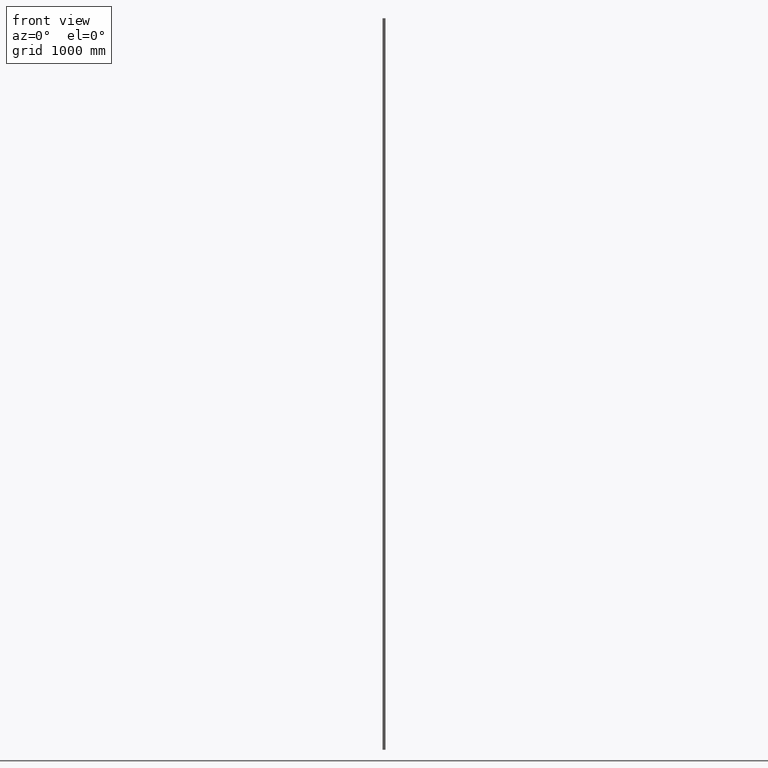
[diagram: clean part render]
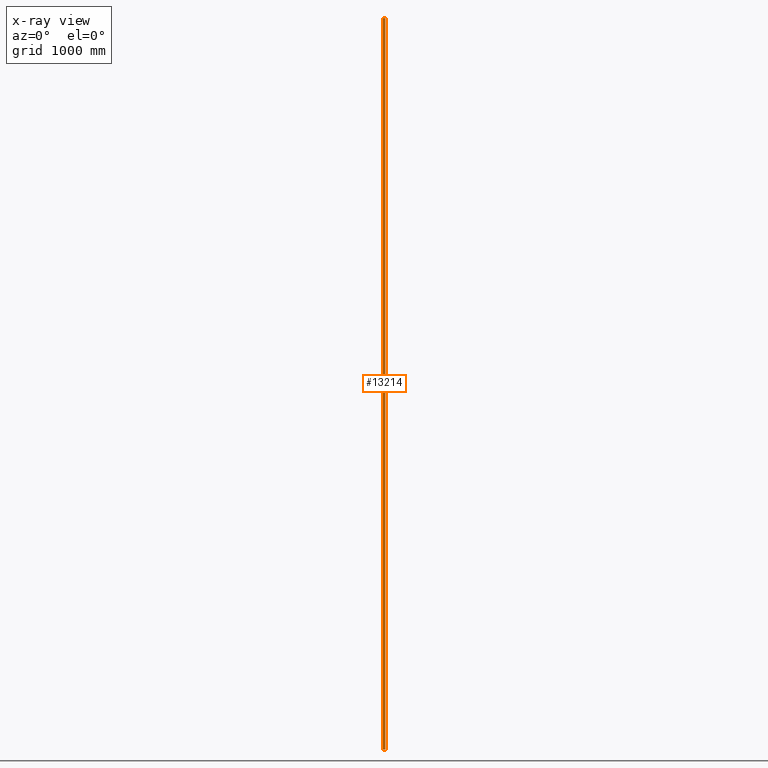
[diagram: x-ray — body ghosted, one internal face saturated and labeled with its STEP entity id]
A machine part, front view, then the same camera in x-ray: the body is ghosted and one INTERNAL B-rep face — a face not visible from any outside direction — is saturated and labeled: STEP entity #13214.
In plain terms, the highlighted planar face has unit normal (-0, 1, 0).
Its self-contained STEP definition (entity closure, byte-faithful):
#605 = PLANE ( 'NONE',  #2508 ) ;
#907 = CARTESIAN_POINT ( 'NONE',  ( 9.999999999999998200, 12.00000000000000200, -3000.000000000000000 ) ) ;
#2120 = LINE ( 'NONE', #9874, #5303 ) ;
#2134 = CARTESIAN_POINT ( 'NONE',  ( 9.999999999999998200, 12.00000000000000200, 3000.000000000000000 ) ) ;
#2508 = AXIS2_PLACEMENT_3D ( 'NONE', #11284, #2943, #2998 ) ;
#2650 = EDGE_CURVE ( 'NONE', #10500, #3262, #13626, .T. ) ;
#2748 = DIRECTION ( 'NONE',  ( -0.0000000000000000000, -0.0000000000000000000, -1.000000000000000000 ) ) ;
#2830 = VECTOR ( 'NONE', #15590, 1000.000000000000000 ) ;
#2943 = DIRECTION ( 'NONE',  ( -8.673617379884035500E-017, 1.000000000000000000, 0.0000000000000000000 ) ) ;
#2998 = DIRECTION ( 'NONE',  ( -1.000000000000000000, -8.673617379884035500E-017, 0.0000000000000000000 ) ) ;
#3262 = VERTEX_POINT ( 'NONE', #907 ) ;
#3308 = DIRECTION ( 'NONE',  ( -0.0000000000000000000, -0.0000000000000000000, -1.000000000000000000 ) ) ;
#3506 = EDGE_LOOP ( 'NONE', ( #8588, #14646, #12254, #12138 ) ) ;
#3564 = CARTESIAN_POINT ( 'NONE',  ( 9.999999999999998200, 12.00000000000000200, 3000.000000000000000 ) ) ;
#4792 = EDGE_CURVE ( 'NONE', #14251, #10500, #2120, .T. ) ;
#5178 = VERTEX_POINT ( 'NONE', #3564 ) ;
#5303 = VECTOR ( 'NONE', #2748, 1000.000000000000000 ) ;
#5814 = LINE ( 'NONE', #2134, #10543 ) ;
#6107 = EDGE_CURVE ( 'NONE', #14251, #5178, #8115, .T. ) ;
#6841 = CARTESIAN_POINT ( 'NONE',  ( -10.00000000000000200, 12.00000000000000000, -3000.000000000000000 ) ) ;
#7041 = VECTOR ( 'NONE', #13992, 1000.000000000000000 ) ;
#7715 = EDGE_CURVE ( 'NONE', #5178, #3262, #5814, .T. ) ;
#8115 = LINE ( 'NONE', #10651, #2830 ) ;
#8588 = ORIENTED_EDGE ( 'NONE', *, *, #2650, .F. ) ;
#9874 = CARTESIAN_POINT ( 'NONE',  ( -10.00000000000000200, 12.00000000000000000, 3000.000000000000000 ) ) ;
#10500 = VERTEX_POINT ( 'NONE', #6841 ) ;
#10543 = VECTOR ( 'NONE', #3308, 1000.000000000000000 ) ;
#10651 = CARTESIAN_POINT ( 'NONE',  ( -10.00000000000000200, 12.00000000000000000, 3000.000000000000000 ) ) ;
#11284 = CARTESIAN_POINT ( 'NONE',  ( -10.00000000000000200, 12.00000000000000000, 3000.000000000000000 ) ) ;
#12098 = FACE_OUTER_BOUND ( 'NONE', #3506, .T. ) ;
#12138 = ORIENTED_EDGE ( 'NONE', *, *, #7715, .T. ) ;
#12254 = ORIENTED_EDGE ( 'NONE', *, *, #6107, .T. ) ;
#12788 = CARTESIAN_POINT ( 'NONE',  ( -10.00000000000000200, 12.00000000000000000, -3000.000000000000000 ) ) ;
#13214 = ADVANCED_FACE ( 'NONE', ( #12098 ), #605, .T. ) ;
#13626 = LINE ( 'NONE', #12788, #7041 ) ;
#13992 = DIRECTION ( 'NONE',  ( 1.000000000000000000, 8.673617379884035500E-017, 0.0000000000000000000 ) ) ;
#14062 = CARTESIAN_POINT ( 'NONE',  ( -10.00000000000000200, 12.00000000000000000, 3000.000000000000000 ) ) ;
#14251 = VERTEX_POINT ( 'NONE', #14062 ) ;
#14646 = ORIENTED_EDGE ( 'NONE', *, *, #4792, .F. ) ;
#15590 = DIRECTION ( 'NONE',  ( 1.000000000000000000, 8.673617379884035500E-017, 0.0000000000000000000 ) ) ;